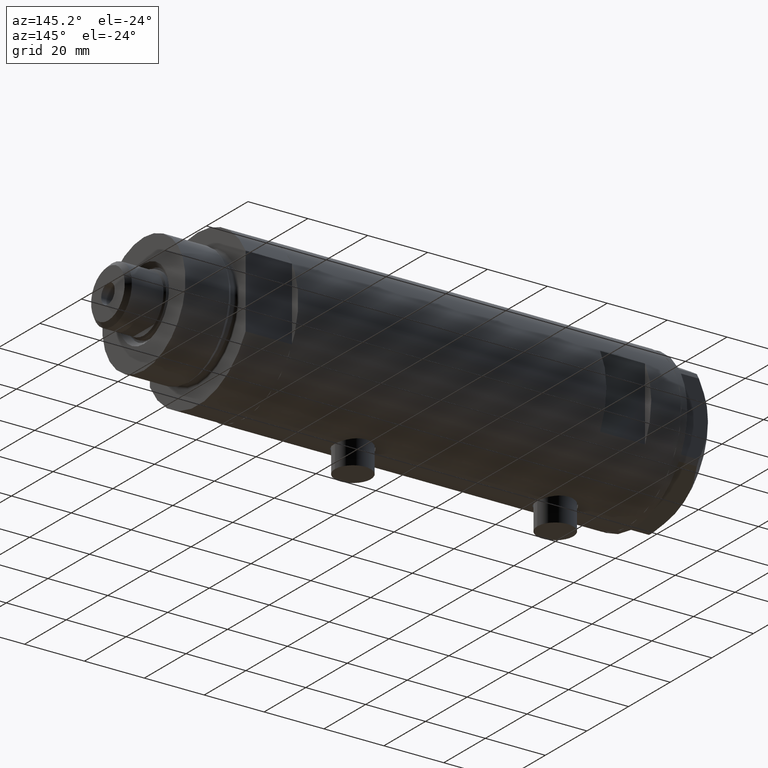
[diagram: clean part render]
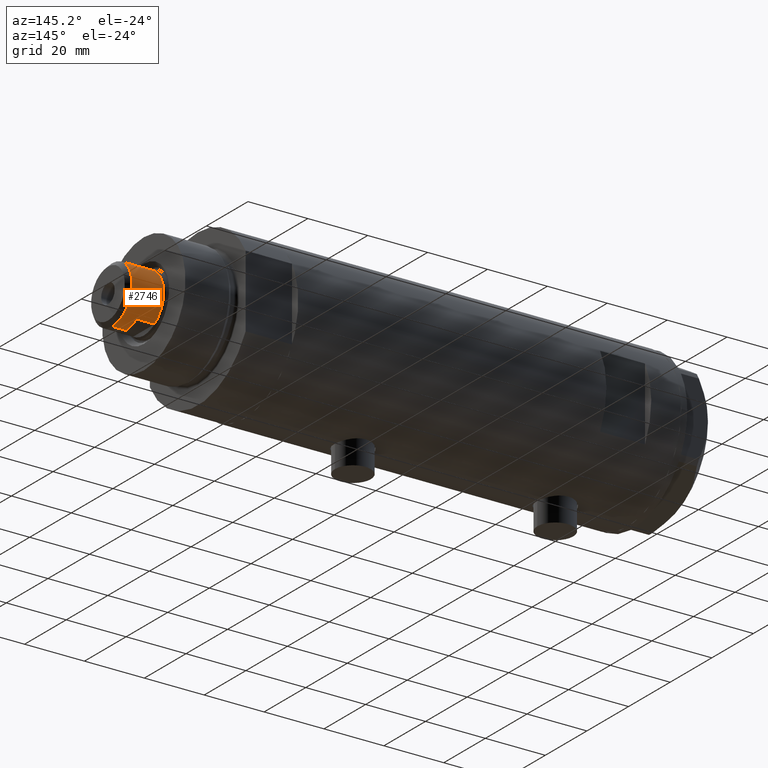
[diagram: same view with one face highlighted and labeled with its STEP entity id]
A machine part, auxiliary view. The second image highlights one B-rep face of the part: STEP entity #2746.
In plain terms, the highlighted cylindrical surface (edge-blend (fillet) strip) has radius 9.5 mm, axis along (-1, -0, 0).
Its self-contained STEP definition (entity closure, byte-faithful):
#7 = DIRECTION ( 'NONE',  ( 0.000000000000000000, 0.000000000000000000, 1.000000000000000000 ) ) ;
#71 = CARTESIAN_POINT ( 'NONE',  ( 9.500000000000001776, 1.163414459189985682E-15, 148.1999999999999886 ) ) ;
#325 = VERTEX_POINT ( 'NONE', #2663 ) ;
#534 = LINE ( 'NONE', #4715, #3610 ) ;
#557 = CARTESIAN_POINT ( 'NONE',  ( -9.500000000000001776, 0.000000000000000000, 148.1999999999999886 ) ) ;
#642 = EDGE_CURVE ( 'NONE', #804, #4376, #4814, .T. ) ;
#738 = ORIENTED_EDGE ( 'NONE', *, *, #2596, .F. ) ;
#804 = VERTEX_POINT ( 'NONE', #71 ) ;
#870 = CARTESIAN_POINT ( 'NONE',  ( 7.982950582334830791, 5.149999999999999467, 143.5999999999999943 ) ) ;
#940 = VERTEX_POINT ( 'NONE', #557 ) ;
#1079 = DIRECTION ( 'NONE',  ( -0.000000000000000000, -0.000000000000000000, -1.000000000000000000 ) ) ;
#1083 = DIRECTION ( 'NONE',  ( -0.000000000000000000, -0.000000000000000000, -1.000000000000000000 ) ) ;
#1563 = ORIENTED_EDGE ( 'NONE', *, *, #2468, .T. ) ;
#1647 = DIRECTION ( 'NONE',  ( -0.000000000000000000, -0.000000000000000000, -1.000000000000000000 ) ) ;
#1683 = VERTEX_POINT ( 'NONE', #3405 ) ;
#1708 = AXIS2_PLACEMENT_3D ( 'NONE', #1898, #7, #3797 ) ;
#1863 = ORIENTED_EDGE ( 'NONE', *, *, #2294, .F. ) ;
#1898 = CARTESIAN_POINT ( 'NONE',  ( 0.000000000000000000, 0.000000000000000000, 143.5999999999999943 ) ) ;
#1904 = CARTESIAN_POINT ( 'NONE',  ( 0.000000000000000000, 0.000000000000000000, 148.1999999999999886 ) ) ;
#2048 = CYLINDRICAL_SURFACE ( 'NONE', #3485, 9.500000000000001776 ) ;
#2093 = ORIENTED_EDGE ( 'NONE', *, *, #3537, .T. ) ;
#2210 = CARTESIAN_POINT ( 'NONE',  ( 9.500000000000001776, 1.163414459189985682E-15, 143.5999999999999943 ) ) ;
#2245 = CIRCLE ( 'NONE', #2871, 9.500000000000001776 ) ;
#2254 = ORIENTED_EDGE ( 'NONE', *, *, #4531, .T. ) ;
#2294 = EDGE_CURVE ( 'NONE', #4235, #3890, #534, .T. ) ;
#2410 = ORIENTED_EDGE ( 'NONE', *, *, #642, .T. ) ;
#2468 = EDGE_CURVE ( 'NONE', #4376, #325, #3853, .T. ) ;
#2480 = CARTESIAN_POINT ( 'NONE',  ( 0.000000000000000000, 0.000000000000000000, 143.5999999999999943 ) ) ;
#2504 = CARTESIAN_POINT ( 'NONE',  ( 0.000000000000000000, 0.000000000000000000, 143.5999999999999943 ) ) ;
#2596 = EDGE_CURVE ( 'NONE', #940, #1683, #3751, .T. ) ;
#2631 = CIRCLE ( 'NONE', #3329, 9.500000000000000000 ) ;
#2663 = CARTESIAN_POINT ( 'NONE',  ( 7.982950582334830791, 5.149999999999999467, 143.5999999999999943 ) ) ;
#2673 = CARTESIAN_POINT ( 'NONE',  ( 9.500000000000000000, 1.163414459189985485E-15, 143.5999999999999943 ) ) ;
#2730 = LINE ( 'NONE', #870, #4214 ) ;
#2746 = ADVANCED_FACE ( 'NONE', ( #3632 ), #2048, .T. ) ;
#2871 = AXIS2_PLACEMENT_3D ( 'NONE', #1904, #4182, #3400 ) ;
#3022 = DIRECTION ( 'NONE',  ( 0.000000000000000000, 0.000000000000000000, 1.000000000000000000 ) ) ;
#3052 = VECTOR ( 'NONE', #3327, 1000.000000000000000 ) ;
#3053 = ORIENTED_EDGE ( 'NONE', *, *, #3938, .T. ) ;
#3240 = DIRECTION ( 'NONE',  ( -1.000000000000000000, 0.000000000000000000, 0.000000000000000000 ) ) ;
#3327 = DIRECTION ( 'NONE',  ( -0.000000000000000000, -0.000000000000000000, -1.000000000000000000 ) ) ;
#3329 = AXIS2_PLACEMENT_3D ( 'NONE', #2504, #4746, #3930 ) ;
#3340 = CARTESIAN_POINT ( 'NONE',  ( 0.000000000000000000, 0.000000000000000000, 137.5999999999999943 ) ) ;
#3374 = CARTESIAN_POINT ( 'NONE',  ( -9.500000000000001776, 0.000000000000000000, 143.5999999999999943 ) ) ;
#3400 = DIRECTION ( 'NONE',  ( 1.000000000000000000, 0.000000000000000000, 0.000000000000000000 ) ) ;
#3405 = CARTESIAN_POINT ( 'NONE',  ( -9.500000000000000000, 0.000000000000000000, 143.5999999999999943 ) ) ;
#3485 = AXIS2_PLACEMENT_3D ( 'NONE', #2480, #4306, #3240 ) ;
#3537 = EDGE_CURVE ( 'NONE', #4235, #1683, #2631, .T. ) ;
#3561 = AXIS2_PLACEMENT_3D ( 'NONE', #3340, #3022, #4165 ) ;
#3610 = VECTOR ( 'NONE', #1079, 1000.000000000000000 ) ;
#3632 = FACE_OUTER_BOUND ( 'NONE', #4798, .T. ) ;
#3751 = LINE ( 'NONE', #3374, #3811 ) ;
#3785 = CARTESIAN_POINT ( 'NONE',  ( -7.982950582334829015, 5.150000000000015454, 137.5999999999999943 ) ) ;
#3797 = DIRECTION ( 'NONE',  ( 1.000000000000000000, 0.000000000000000000, 0.000000000000000000 ) ) ;
#3811 = VECTOR ( 'NONE', #1083, 1000.000000000000000 ) ;
#3853 = CIRCLE ( 'NONE', #1708, 9.500000000000000000 ) ;
#3880 = EDGE_CURVE ( 'NONE', #4146, #3890, #3892, .T. ) ;
#3890 = VERTEX_POINT ( 'NONE', #3785 ) ;
#3892 = CIRCLE ( 'NONE', #3561, 9.500000000000008882 ) ;
#3930 = DIRECTION ( 'NONE',  ( 1.000000000000000000, 0.000000000000000000, 0.000000000000000000 ) ) ;
#3931 = ORIENTED_EDGE ( 'NONE', *, *, #3880, .T. ) ;
#3938 = EDGE_CURVE ( 'NONE', #325, #4146, #2730, .T. ) ;
#4023 = CARTESIAN_POINT ( 'NONE',  ( 7.982950582334830791, 5.149999999999999467, 137.5999999999999943 ) ) ;
#4146 = VERTEX_POINT ( 'NONE', #4023 ) ;
#4165 = DIRECTION ( 'NONE',  ( 1.000000000000000000, 0.000000000000000000, 0.000000000000000000 ) ) ;
#4182 = DIRECTION ( 'NONE',  ( 0.000000000000000000, 0.000000000000000000, -1.000000000000000000 ) ) ;
#4214 = VECTOR ( 'NONE', #1647, 1000.000000000000000 ) ;
#4235 = VERTEX_POINT ( 'NONE', #4736 ) ;
#4306 = DIRECTION ( 'NONE',  ( -0.000000000000000000, -0.000000000000000000, -1.000000000000000000 ) ) ;
#4376 = VERTEX_POINT ( 'NONE', #2673 ) ;
#4531 = EDGE_CURVE ( 'NONE', #940, #804, #2245, .T. ) ;
#4715 = CARTESIAN_POINT ( 'NONE',  ( -7.982950582334830791, 5.149999999999999467, 143.5999999999999943 ) ) ;
#4736 = CARTESIAN_POINT ( 'NONE',  ( -7.982950582334830791, 5.149999999999999467, 143.5999999999999943 ) ) ;
#4746 = DIRECTION ( 'NONE',  ( 0.000000000000000000, 0.000000000000000000, 1.000000000000000000 ) ) ;
#4798 = EDGE_LOOP ( 'NONE', ( #2254, #2410, #1563, #3053, #3931, #1863, #2093, #738 ) ) ;
#4814 = LINE ( 'NONE', #2210, #3052 ) ;